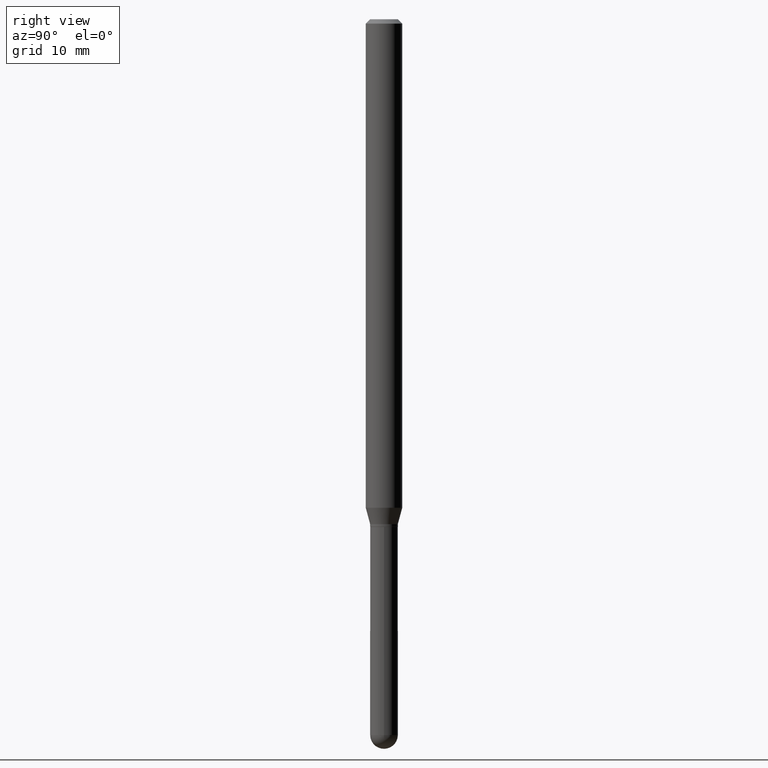
[diagram: clean part render]
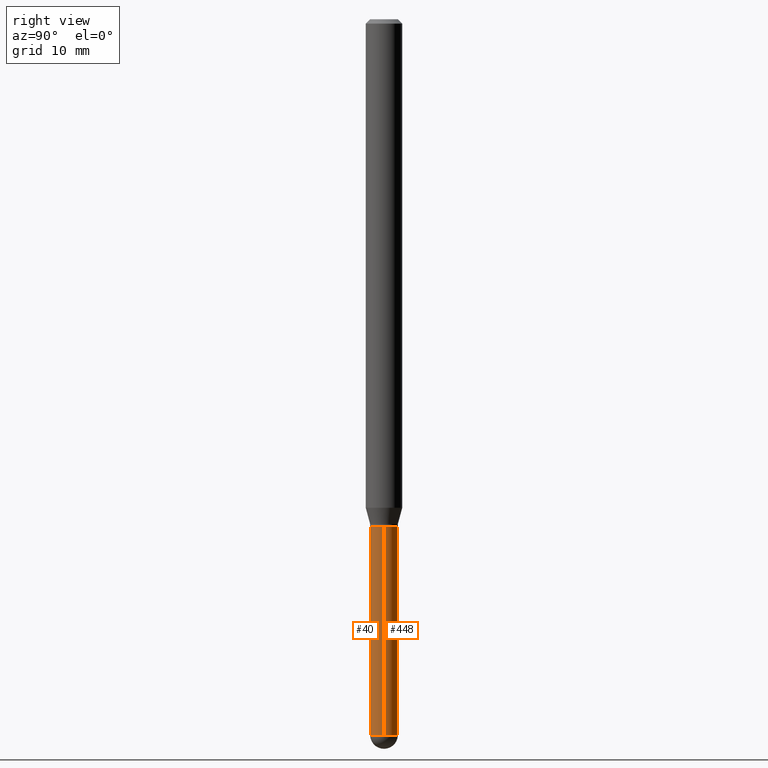
[diagram: same view with one multi-face feature highlighted, each face labeled with its STEP entity id]
A machine part, right view. The highlighted faces form ONE feature: a constant-radius fillet chain: 2 tangent blend faces with common blend radius 1.2065 mm. The faces share edges in the B-rep.
Their STEP definitions:
[1] entity #448 (Cylinder):
#2 = DIRECTION ( 'NONE',  ( -2.445468806185136597E-29, 3.491481338843145583E-15, 1.000000000000000000 ) ) ;
#7 = VECTOR ( 'NONE', #230, 39.37007874015748143 ) ;
#12 = DIRECTION ( 'NONE',  ( -2.445468806185136597E-29, 3.491481338843145583E-15, 1.000000000000000000 ) ) ;
#32 = VERTEX_POINT ( 'NONE', #52 ) ;
#33 = CARTESIAN_POINT ( 'NONE',  ( 0.04749999999999999362, -6.406868256777172111E-15, -1.740000000000000213 ) ) ;
#52 = CARTESIAN_POINT ( 'NONE',  ( 3.316907271901575630E-16, 0.04749999999999143102, -2.452500000000000568 ) ) ;
#80 = CYLINDRICAL_SURFACE ( 'NONE', #404, 0.04750000000000000749 ) ;
#91 = ORIENTED_EDGE ( 'NONE', *, *, #373, .T. ) ;
#99 = EDGE_CURVE ( 'NONE', #156, #32, #359, .T. ) ;
#151 = VERTEX_POINT ( 'NONE', #328 ) ;
#154 = CARTESIAN_POINT ( 'NONE',  ( 0.04750000000000000749, -3.316907271900977082E-16, 2.316183968503069432E-30 ) ) ;
#155 = FACE_OUTER_BOUND ( 'NONE', #198, .T. ) ;
#156 = VERTEX_POINT ( 'NONE', #406 ) ;
#157 = DIRECTION ( 'NONE',  ( -2.445468806185136597E-29, 3.491481338843145583E-15, 1.000000000000000000 ) ) ;
#164 = ORIENTED_EDGE ( 'NONE', *, *, #434, .T. ) ;
#179 = AXIS2_PLACEMENT_3D ( 'NONE', #242, #12, #247 ) ;
#198 = EDGE_LOOP ( 'NONE', ( #164, #91, #461, #220, #296 ) ) ;
#210 = CARTESIAN_POINT ( 'NONE',  ( 4.255115722762138620E-29, -6.075177529587074600E-15, -1.740000000000000213 ) ) ;
#214 = DIRECTION ( 'NONE',  ( -2.445468806185136597E-29, 3.491481338843145583E-15, 1.000000000000000000 ) ) ;
#220 = ORIENTED_EDGE ( 'NONE', *, *, #453, .F. ) ;
#224 = VECTOR ( 'NONE', #467, 39.37007874015748143 ) ;
#228 = LINE ( 'NONE', #154, #7 ) ;
#230 = DIRECTION ( 'NONE',  ( -2.445468806185136877E-29, 3.491481338843145188E-15, 1.000000000000000000 ) ) ;
#242 = CARTESIAN_POINT ( 'NONE',  ( 5.997512247169047773E-29, -8.562857983512815004E-15, -2.452500000000000124 ) ) ;
#245 = AXIS2_PLACEMENT_3D ( 'NONE', #210, #214, #478 ) ;
#247 = DIRECTION ( 'NONE',  ( 1.000000000000000000, -6.982962677686280910E-15, 0.000000000000000000 ) ) ;
#267 = VERTEX_POINT ( 'NONE', #423 ) ;
#296 = ORIENTED_EDGE ( 'NONE', *, *, #99, .T. ) ;
#328 = CARTESIAN_POINT ( 'NONE',  ( -0.04750000000000000749, -6.981509957063897703E-15, -2.452500000000000124 ) ) ;
#345 = DIRECTION ( 'NONE',  ( 1.000000000000000000, -6.982962677686280910E-15, 0.000000000000000000 ) ) ;
#349 = CARTESIAN_POINT ( 'NONE',  ( 5.997512247169047773E-29, -8.562857983512815004E-15, -2.452500000000000124 ) ) ;
#351 = EDGE_CURVE ( 'NONE', #475, #267, #470, .T. ) ;
#359 = CIRCLE ( 'NONE', #179, 0.04750000000000000749 ) ;
#373 = EDGE_CURVE ( 'NONE', #151, #267, #386, .T. ) ;
#386 = LINE ( 'NONE', #427, #224 ) ;
#395 = AXIS2_PLACEMENT_3D ( 'NONE', #349, #157, #345 ) ;
#404 = AXIS2_PLACEMENT_3D ( 'NONE', #509, #2, #512 ) ;
#406 = CARTESIAN_POINT ( 'NONE',  ( 0.04750000000000000749, -7.650708483740042707E-15, -2.452500000000000124 ) ) ;
#423 = CARTESIAN_POINT ( 'NONE',  ( -0.04749999999999999362, -6.981509957063897703E-15, -1.740000000000000213 ) ) ;
#427 = CARTESIAN_POINT ( 'NONE',  ( -0.04750000000000000749, 3.375077994860476415E-16, -2.336494167871080260E-30 ) ) ;
#432 = CIRCLE ( 'NONE', #395, 0.04750000000000000749 ) ;
#434 = EDGE_CURVE ( 'NONE', #32, #151, #432, .T. ) ;
#448 = ADVANCED_FACE ( 'NONE', ( #155 ), #80, .T. ) ;
#453 = EDGE_CURVE ( 'NONE', #156, #475, #228, .T. ) ;
#461 = ORIENTED_EDGE ( 'NONE', *, *, #351, .F. ) ;
#467 = DIRECTION ( 'NONE',  ( -2.445468806185136877E-29, 3.491481338843145188E-15, 1.000000000000000000 ) ) ;
#470 = CIRCLE ( 'NONE', #245, 0.04749999999999999362 ) ;
#475 = VERTEX_POINT ( 'NONE', #33 ) ;
#478 = DIRECTION ( 'NONE',  ( 1.000000000000000000, -6.982962677686261977E-15, 0.000000000000000000 ) ) ;
#509 = CARTESIAN_POINT ( 'NONE',  ( 0.000000000000000000, 0.000000000000000000, 0.000000000000000000 ) ) ;
#512 = DIRECTION ( 'NONE',  ( 1.000000000000000000, -6.982962677686266711E-15, 4.876176775795934672E-29 ) ) ;
[2] entity #40 (Cylinder):
#7 = VECTOR ( 'NONE', #230, 39.37007874015748143 ) ;
#13 = AXIS2_PLACEMENT_3D ( 'NONE', #234, #268, #419 ) ;
#16 = DIRECTION ( 'NONE',  ( -2.445468806185136597E-29, 3.491481338843145583E-15, 1.000000000000000000 ) ) ;
#33 = CARTESIAN_POINT ( 'NONE',  ( 0.04749999999999999362, -6.406868256777172111E-15, -1.740000000000000213 ) ) ;
#40 = ADVANCED_FACE ( 'NONE', ( #450 ), #208, .T. ) ;
#45 = ORIENTED_EDGE ( 'NONE', *, *, #453, .T. ) ;
#54 = EDGE_CURVE ( 'NONE', #418, #156, #150, .T. ) ;
#63 = DIRECTION ( 'NONE',  ( 1.000000000000000000, -6.982962677686280910E-15, 0.000000000000000000 ) ) ;
#76 = ORIENTED_EDGE ( 'NONE', *, *, #458, .T. ) ;
#100 = DIRECTION ( 'NONE',  ( 1.000000000000000000, -6.982962677686266711E-15, 4.876176775795934672E-29 ) ) ;
#112 = CARTESIAN_POINT ( 'NONE',  ( -3.375077994859875895E-16, -0.04750000000000855621, -2.452499999999999680 ) ) ;
#117 = AXIS2_PLACEMENT_3D ( 'NONE', #365, #16, #63 ) ;
#143 = CARTESIAN_POINT ( 'NONE',  ( 4.255115722762138620E-29, -6.075177529587074600E-15, -1.740000000000000213 ) ) ;
#150 = CIRCLE ( 'NONE', #117, 0.04750000000000000749 ) ;
#151 = VERTEX_POINT ( 'NONE', #328 ) ;
#154 = CARTESIAN_POINT ( 'NONE',  ( 0.04750000000000000749, -3.316907271900977082E-16, 2.316183968503069432E-30 ) ) ;
#156 = VERTEX_POINT ( 'NONE', #406 ) ;
#183 = DIRECTION ( 'NONE',  ( 1.000000000000000000, -6.982962677686261977E-15, 0.000000000000000000 ) ) ;
#208 = CYLINDRICAL_SURFACE ( 'NONE', #400, 0.04750000000000000749 ) ;
#224 = VECTOR ( 'NONE', #467, 39.37007874015748143 ) ;
#228 = LINE ( 'NONE', #154, #7 ) ;
#230 = DIRECTION ( 'NONE',  ( -2.445468806185136877E-29, 3.491481338843145188E-15, 1.000000000000000000 ) ) ;
#232 = ORIENTED_EDGE ( 'NONE', *, *, #269, .F. ) ;
#234 = CARTESIAN_POINT ( 'NONE',  ( 5.997512247169047773E-29, -8.562857983512815004E-15, -2.452500000000000124 ) ) ;
#238 = ORIENTED_EDGE ( 'NONE', *, *, #54, .T. ) ;
#244 = DIRECTION ( 'NONE',  ( -2.445468806185136597E-29, 3.491481338843145583E-15, 1.000000000000000000 ) ) ;
#267 = VERTEX_POINT ( 'NONE', #423 ) ;
#268 = DIRECTION ( 'NONE',  ( -2.445468806185136597E-29, 3.491481338843145583E-15, 1.000000000000000000 ) ) ;
#269 = EDGE_CURVE ( 'NONE', #267, #475, #271, .T. ) ;
#271 = CIRCLE ( 'NONE', #369, 0.04749999999999999362 ) ;
#328 = CARTESIAN_POINT ( 'NONE',  ( -0.04750000000000000749, -6.981509957063897703E-15, -2.452500000000000124 ) ) ;
#365 = CARTESIAN_POINT ( 'NONE',  ( 5.997512247169047773E-29, -8.562857983512815004E-15, -2.452500000000000124 ) ) ;
#369 = AXIS2_PLACEMENT_3D ( 'NONE', #143, #506, #183 ) ;
#373 = EDGE_CURVE ( 'NONE', #151, #267, #386, .T. ) ;
#382 = EDGE_LOOP ( 'NONE', ( #507, #76, #238, #45, #232 ) ) ;
#386 = LINE ( 'NONE', #427, #224 ) ;
#400 = AXIS2_PLACEMENT_3D ( 'NONE', #484, #244, #100 ) ;
#406 = CARTESIAN_POINT ( 'NONE',  ( 0.04750000000000000749, -7.650708483740042707E-15, -2.452500000000000124 ) ) ;
#418 = VERTEX_POINT ( 'NONE', #112 ) ;
#419 = DIRECTION ( 'NONE',  ( 1.000000000000000000, -6.982962677686280910E-15, 0.000000000000000000 ) ) ;
#423 = CARTESIAN_POINT ( 'NONE',  ( -0.04749999999999999362, -6.981509957063897703E-15, -1.740000000000000213 ) ) ;
#427 = CARTESIAN_POINT ( 'NONE',  ( -0.04750000000000000749, 3.375077994860476415E-16, -2.336494167871080260E-30 ) ) ;
#450 = FACE_OUTER_BOUND ( 'NONE', #382, .T. ) ;
#453 = EDGE_CURVE ( 'NONE', #156, #475, #228, .T. ) ;
#458 = EDGE_CURVE ( 'NONE', #151, #418, #463, .T. ) ;
#463 = CIRCLE ( 'NONE', #13, 0.04750000000000000749 ) ;
#467 = DIRECTION ( 'NONE',  ( -2.445468806185136877E-29, 3.491481338843145188E-15, 1.000000000000000000 ) ) ;
#475 = VERTEX_POINT ( 'NONE', #33 ) ;
#484 = CARTESIAN_POINT ( 'NONE',  ( 0.000000000000000000, 0.000000000000000000, 0.000000000000000000 ) ) ;
#506 = DIRECTION ( 'NONE',  ( -2.445468806185136597E-29, 3.491481338843145583E-15, 1.000000000000000000 ) ) ;
#507 = ORIENTED_EDGE ( 'NONE', *, *, #373, .F. ) ;